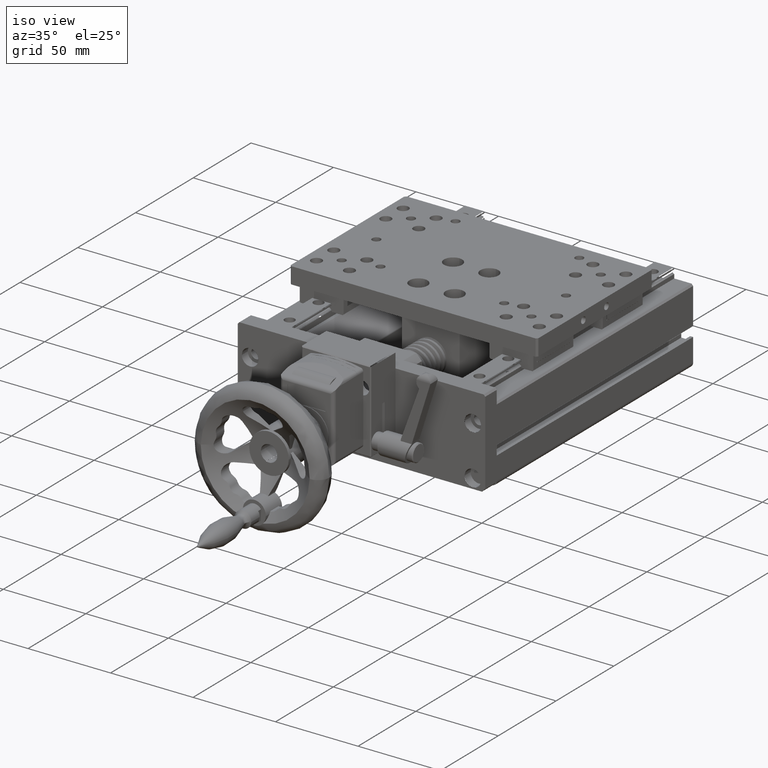
[diagram: clean part render]
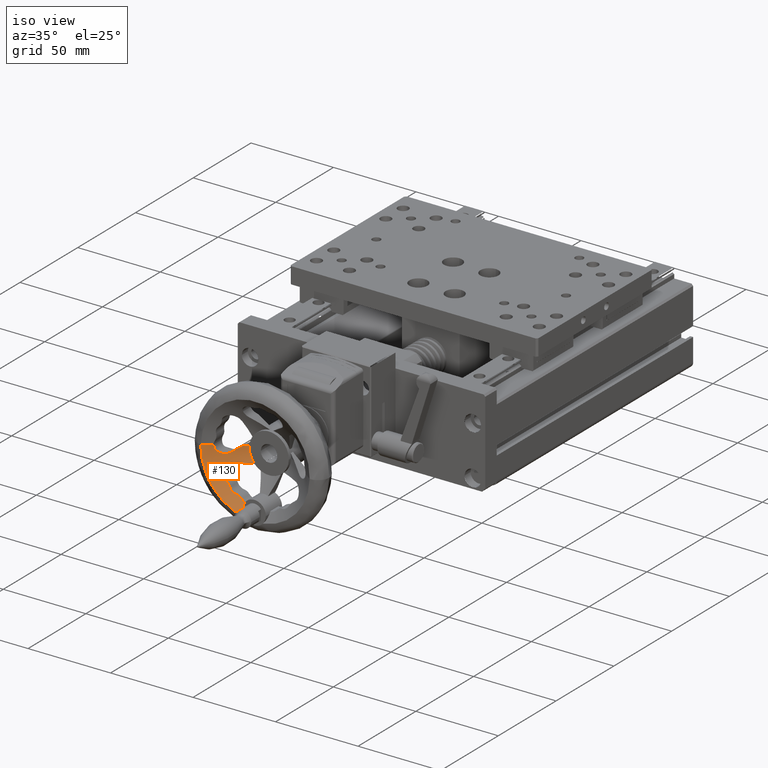
[diagram: same view with one face highlighted and labeled with its STEP entity id]
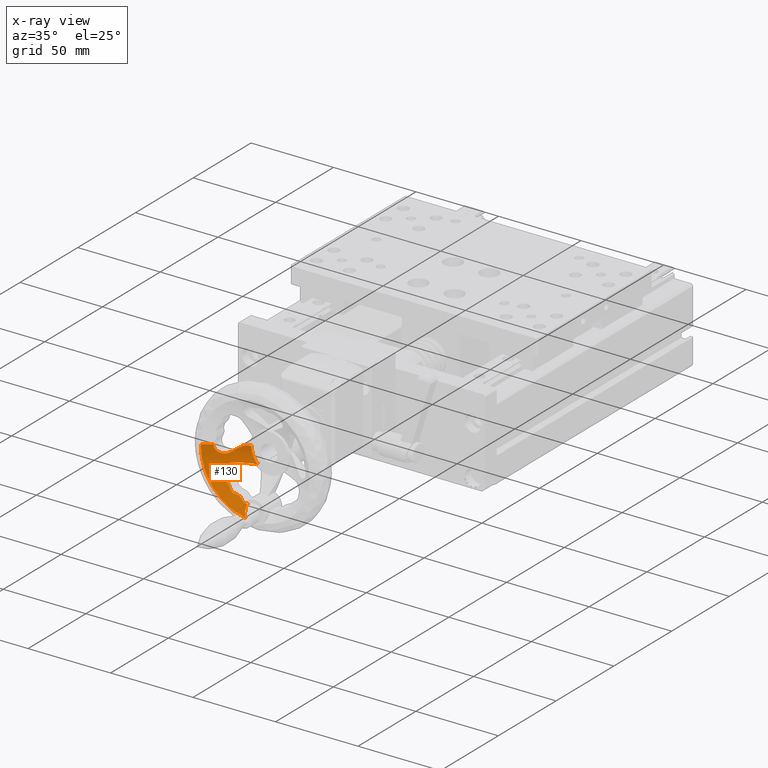
[diagram: x-ray of the same camera — body ghosted, the highlighted face saturated]
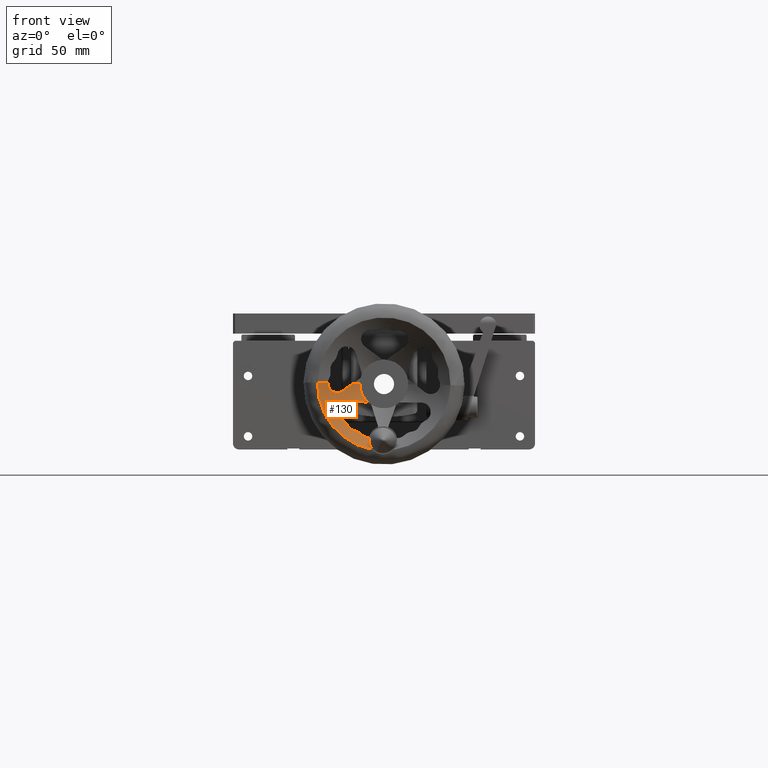
[diagram: same view with one face highlighted and labeled with its STEP entity id]
A machine part, iso view. The second image highlights one B-rep face of the part: STEP entity #130.
The next image is the same camera in x-ray: the body ghosted, the highlighted face saturated — about 0% of this face is hidden behind the body in this view.
A second angle (front view) of the same face is appended — the face is thin or edge-on in the first view.
In plain terms, the highlighted toroidal blend (fillet) surface has major radius 88.219 mm and minor (blend) radius 200 mm.
Its self-contained STEP definition (entity closure, byte-faithful):
#130 = ADVANCED_FACE ( 'NONE', ( #20526 ), #17076, .F. ) ;
#167 = CARTESIAN_POINT ( 'NONE',  ( -35.20759888211289734, -181.0721756320948828, -17.09248556605515290 ) ) ;
#332 = B_SPLINE_CURVE_WITH_KNOTS ( 'NONE', 3,
 ( #23580, #11205, #8423, #26373 ),
 .UNSPECIFIED., .F., .F.,
 ( 4, 4 ),
 ( 1.915750570996372162E-16, 0.001560065092888875647 ),
 .UNSPECIFIED. ) ;
#552 = CARTESIAN_POINT ( 'NONE',  ( -45.65972365696307378, -181.1356288327109212, -11.68217338956072915 ) ) ;
#746 = AXIS2_PLACEMENT_3D ( 'NONE', #1751, #29579, #6883 ) ;
#1002 = CARTESIAN_POINT ( 'NONE',  ( -60.82072043534120098, -185.0472645979106687, 10.11649312924499000 ) ) ;
#1063 = CARTESIAN_POINT ( 'NONE',  ( -46.36032933964354186, -180.7828937723093645, -10.39720411353399498 ) ) ;
#1073 = CARTESIAN_POINT ( 'NONE',  ( -51.51633719936766198, -180.7319738071517747, -3.696356152794018524 ) ) ;
#1103 = VERTEX_POINT ( 'NONE', #9885 ) ;
#1676 = CARTESIAN_POINT ( 'NONE',  ( -34.84302518853201747, -183.8655111626025587, -21.14174073832096212 ) ) ;
#1706 = CARTESIAN_POINT ( 'NONE',  ( -51.21001404398612067, -180.0160731779836851, -2.088564710025329507 ) ) ;
#1751 = CARTESIAN_POINT ( 'NONE',  ( 60.37710383822418692, -344.1257330768481211, 7.851927442017011316 ) ) ;
#1880 = CARTESIAN_POINT ( 'NONE',  ( -55.69161570500546787, -181.2658271515406057, 10.02065647006300964 ) ) ;
#2089 = CARTESIAN_POINT ( 'NONE',  ( -35.20759888211289734, -181.0721756320948828, -17.09248556605515290 ) ) ;
#2239 = DIRECTION ( 'NONE',  ( -0.9998254834963282711, 4.625929269271484533E-15, 0.01868160997701853732 ) ) ;
#2369 = CARTESIAN_POINT ( 'NONE',  ( -49.76837488946310373, -177.4472840918411691, 5.417039781009493460 ) ) ;
#2424 = ORIENTED_EDGE ( 'NONE', *, *, #8896, .F. ) ;
#2460 = VERTEX_POINT ( 'NONE', #10472 ) ;
#2534 = CARTESIAN_POINT ( 'NONE',  ( -48.30759186897606128, -176.4222165838544925, 6.133604127649560311 ) ) ;
#2790 = CARTESIAN_POINT ( 'NONE',  ( -43.19394182549641670, -173.0430236753305735, 9.787139048381959583 ) ) ;
#3023 = CARTESIAN_POINT ( 'NONE',  ( -53.67299588219692197, -179.9982932414938261, 6.082589096224468861 ) ) ;
#3221 = CARTESIAN_POINT ( 'NONE',  ( -49.41165364675590155, -181.0758200170191401, -7.709538353886959072 ) ) ;
#3341 = CARTESIAN_POINT ( 'NONE',  ( -45.85746851957555492, -181.0588080310190549, -11.37115806899237747 ) ) ;
#3456 = DIRECTION ( 'NONE',  ( -0.01868160997701847140, -3.885780586188043947E-16, -0.9998254834963282711 ) ) ;
#3539 = CARTESIAN_POINT ( 'NONE',  ( -50.99297939292282678, -181.2456744175864003, -5.944144708486989614 ) ) ;
#3568 = VERTEX_POINT ( 'NONE', #20243 ) ;
#3701 = CARTESIAN_POINT ( 'NONE',  ( -50.65177008716059959, -181.2687370017263220, -6.500584958977401406 ) ) ;
#3868 = CARTESIAN_POINT ( 'NONE',  ( -50.78531713316135665, -179.5002136143922371, -1.255296063082409930 ) ) ;
#3913 = ORIENTED_EDGE ( 'NONE', *, *, #29702, .F. ) ;
#4211 = CARTESIAN_POINT ( 'NONE',  ( -50.42399889044295236, -179.1336422960816890, -0.7657145961287527003 ) ) ;
#4292 = EDGE_CURVE ( 'NONE', #28869, #15861, #332, .T. ) ;
#4646 = VERTEX_POINT ( 'NONE', #2790 ) ;
#4879 = CARTESIAN_POINT ( 'NONE',  ( -52.15783460873674926, -179.0353327453101713, 5.385566004492386760 ) ) ;
#5051 = CARTESIAN_POINT ( 'NONE',  ( -55.56572806013129906, -181.1778190091564227, 8.827365797378989853 ) ) ;
#5216 = CARTESIAN_POINT ( 'NONE',  ( -55.03235136653582060, -180.8443078185648289, 7.528983904851460629 ) ) ;
#5234 = VERTEX_POINT ( 'NONE', #6736 ) ;
#5402 = CARTESIAN_POINT ( 'NONE',  ( -39.56754377109692911, -172.6226366815955657, 0.6742198163762701535 ) ) ;
#5416 = CIRCLE ( 'NONE', #20623, 33.00000000000002132 ) ;
#5484 = CARTESIAN_POINT ( 'NONE',  ( -46.70979708014515808, -176.4222165838594663, 0.8843803315465963433 ) ) ;
#5522 = CARTESIAN_POINT ( 'NONE',  ( -52.55725751959531067, -179.2919521824121318, 5.503309268526999531 ) ) ;
#5569 = CARTESIAN_POINT ( 'NONE',  ( -35.83619223977510870, -171.0472645979106971, 0.5644249482622022418 ) ) ;
#5588 = DIRECTION ( 'NONE',  ( -0.9998254834963282711, 4.323581423437693004E-15, 0.01868160997701846793 ) ) ;
#5715 = CARTESIAN_POINT ( 'NONE',  ( -51.47773221436244029, -180.9978569296023636, -4.523629121668261810 ) ) ;
#5738 = CARTESIAN_POINT ( 'NONE',  ( -46.63266729088378781, -175.2221292571945526, 7.330282700415003738 ) ) ;
#5870 = CARTESIAN_POINT ( 'NONE',  ( -50.23385097093370888, -181.2372387930633124, -7.006299938386707282 ) ) ;
#6012 = CARTESIAN_POINT ( 'NONE',  ( -46.17362950097570007, -180.8604277609198334, -10.71745405740912815 ) ) ;
#6161 = CARTESIAN_POINT ( 'NONE',  ( -44.92063567721042716, -181.2659377547785482, -12.51528975698866475 ) ) ;
#6230 = EDGE_CURVE ( 'NONE', #2460, #21063, #9698, .T. ) ;
#6365 = CARTESIAN_POINT ( 'NONE',  ( -51.51633719936766198, -180.7319738071517747, -3.696356152794018524 ) ) ;
#6736 = CARTESIAN_POINT ( 'NONE',  ( -55.69161570500546787, -181.2658271515406057, 10.02065647006300964 ) ) ;
#6843 = CARTESIAN_POINT ( 'NONE',  ( -49.53595329109386114, -178.3576305509217832, 0.04616065768476903391 ) ) ;
#6883 = DIRECTION ( 'NONE',  ( -0.9998254834963282711, 0.000000000000000000, 0.01868160997701847140 ) ) ;
#6963 = CARTESIAN_POINT ( 'NONE',  ( -34.26332441635123871, -184.5980068641159733, -22.26438063636139120 ) ) ;
#7087 = CARTESIAN_POINT ( 'NONE',  ( -38.77664997416599135, -180.9596663953806797, -15.65965585937461135 ) ) ;
#7256 = CARTESIAN_POINT ( 'NONE',  ( -41.38557953275041967, -180.7063936898569807, -13.94296107636202642 ) ) ;
#7277 = CARTESIAN_POINT ( 'NONE',  ( -36.84275012984822695, -181.2670105658246484, -16.87354792188359909 ) ) ;
#7336 = CARTESIAN_POINT ( 'NONE',  ( -54.34039896910782375, -180.4150160428827974, 6.639535763759090159 ) ) ;
#7376 = CARTESIAN_POINT ( 'NONE',  ( -46.70979708014515808, -176.4222165838594663, 0.8843803315465963433 ) ) ;
#7487 = CARTESIAN_POINT ( 'NONE',  ( -54.77942292163696436, -180.6874964110879489, 7.150293849236059707 ) ) ;
#7826 = CARTESIAN_POINT ( 'NONE',  ( -53.31114226078447871, -179.7705454754542700, 5.857123049797614556 ) ) ;
#7989 = CARTESIAN_POINT ( 'NONE',  ( -33.73517687360812545, -185.0472645979110382, -22.96671056805886124 ) ) ;
#7999 = CARTESIAN_POINT ( 'NONE',  ( -48.40763726117756960, -180.7841996532058886, -8.274061908304238599 ) ) ;
#8423 = CARTESIAN_POINT ( 'NONE',  ( -35.34038421728889290, -181.6789010524686887, -17.93839731013261485 ) ) ;
#8476 = CARTESIAN_POINT ( 'NONE',  ( -51.25197336798499492, -181.1696398957047336, -5.349882254967512907 ) ) ;
#8600 = CARTESIAN_POINT ( 'NONE',  ( -44.47648753274064859, -181.2657713218470974, -12.85048475339181451 ) ) ;
#8674 = AXIS2_PLACEMENT_3D ( 'NONE', #30377, #17535, #2239 ) ;
#8896 = EDGE_CURVE ( 'NONE', #27811, #4646, #10948, .T. ) ;
#9271 = CARTESIAN_POINT ( 'NONE',  ( -49.03030695708595488, -177.9629793446584642, 0.3553073157518634173 ) ) ;
#9310 = ORIENTED_EDGE ( 'NONE', *, *, #29385, .F. ) ;
#9429 = EDGE_CURVE ( 'NONE', #13628, #28869, #27701, .T. ) ;
#9698 = CIRCLE ( 'NONE', #8674, 12.00000000000000355 ) ;
#9885 = CARTESIAN_POINT ( 'NONE',  ( -42.61839203092201700, -180.9596664132261594, -13.61090315448903709 ) ) ;
#9944 = CARTESIAN_POINT ( 'NONE',  ( -48.64875041667082911, -176.6666574708258963, 5.889857555844051795 ) ) ;
#10031 = CARTESIAN_POINT ( 'NONE',  ( -39.89443863455388595, -180.6793691793801884, -14.70357034504473503 ) ) ;
#10051 = CARTESIAN_POINT ( 'NONE',  ( -36.99978170966205226, -181.2672600317621630, -16.81970660152948938 ) ) ;
#10100 = CARTESIAN_POINT ( 'NONE',  ( -54.63891806896142356, -180.6004125194051255, 6.970380765414200930 ) ) ;
#10198 = CIRCLE ( 'NONE', #746, 200.0000000000050022 ) ;
#10323 = CARTESIAN_POINT ( 'NONE',  ( -48.30759186897606128, -176.4222165838544925, 6.133604127649560311 ) ) ;
#10472 = CARTESIAN_POINT ( 'NONE',  ( -39.82438528191870120, -171.0472645979106971, 9.724179319727600301 ) ) ;
#10478 = ORIENTED_EDGE ( 'NONE', *, *, #18404, .F. ) ;
#10902 = CARTESIAN_POINT ( 'NONE',  ( -43.83276217124959118, -181.2128299124469777, -13.22506020062132315 ) ) ;
#10905 = B_SPLINE_CURVE_WITH_KNOTS ( 'NONE', 3,
 ( #5569, #12772, #27957, #5402, #15406, #30541, #15565, #7376 ),
 .UNSPECIFIED., .F., .F.,
 ( 4, 2, 2, 4 ),
 ( 1.059522947639563442E-16, 0.003033436196410254845, 0.006066872392820403873, 0.01213374478564074009 ),
 .UNSPECIFIED. ) ;
#10948 = B_SPLINE_CURVE_WITH_KNOTS ( 'NONE', 3,
 ( #10323, #5738, #15745, #20849 ),
 .UNSPECIFIED., .F., .F.,
 ( 4, 4 ),
 ( 2.550235266125676276E-16, 0.007131365107310205613 ),
 .UNSPECIFIED. ) ;
#10949 = ORIENTED_EDGE ( 'NONE', *, *, #4292, .F. ) ;
#11205 = CARTESIAN_POINT ( 'NONE',  ( -35.29388226409313489, -181.3773086519043716, -17.51436107901160355 ) ) ;
#11261 = ORIENTED_EDGE ( 'NONE', *, *, #31879, .F. ) ;
#11265 = CARTESIAN_POINT ( 'NONE',  ( -51.52407215377625960, -180.8789452557913648, -4.110324999210925867 ) ) ;
#11587 = CARTESIAN_POINT ( 'NONE',  ( -47.92151523215729725, -177.1679762397873503, 0.8001652779037958796 ) ) ;
#11740 = CARTESIAN_POINT ( 'NONE',  ( -51.31789050069276215, -180.1790703582512947, -2.395535511290179720 ) ) ;
#11910 = CARTESIAN_POINT ( 'NONE',  ( -46.70979708014515808, -176.4222165838594663, 0.8843803315465963433 ) ) ;
#11980 = ORIENTED_EDGE ( 'NONE', *, *, #27535, .F. ) ;
#12087 = CARTESIAN_POINT ( 'NONE',  ( -51.46691180254790510, -180.4754045009820231, -3.027263917532670323 ) ) ;
#12353 = CARTESIAN_POINT ( 'NONE',  ( -36.35756103594783895, -181.2449344776378553, -17.00192047523051997 ) ) ;
#12730 = CARTESIAN_POINT ( 'NONE',  ( -50.15697648601491210, -177.7123344844704320, 5.326652898786684354 ) ) ;
#12772 = CARTESIAN_POINT ( 'NONE',  ( -36.78785045658981545, -171.4030008482865526, 0.5924274528581241483 ) ) ;
#12797 = ORIENTED_EDGE ( 'NONE', *, *, #31979, .F. ) ;
#12808 = ORIENTED_EDGE ( 'NONE', *, *, #6230, .F. ) ;
#12821 = CARTESIAN_POINT ( 'NONE',  ( -42.61839203092201700, -180.9596664132261594, -13.61090315448903709 ) ) ;
#13380 = CARTESIAN_POINT ( 'NONE',  ( -46.01547161908842298, -180.9596664563090087, -11.04446607956113091 ) ) ;
#13628 = VERTEX_POINT ( 'NONE', #27149 ) ;
#13706 = CARTESIAN_POINT ( 'NONE',  ( -44.32215288086067773, -181.2591845239853114, -12.95316525716067702 ) ) ;
#13924 = B_SPLINE_CURVE_WITH_KNOTS ( 'NONE', 3,
 ( #11910, #14559, #11587, #21643, #9271, #6843, #26772, #26933, #4211, #3868, #14228, #1706, #11740, #12087, #28908, #6365 ),
 .UNSPECIFIED., .F., .F.,
 ( 4, 2, 2, 2, 2, 2, 2, 4 ),
 ( 7.059813062317230268E-18, 0.002127052117968512065, 0.003190578176952756605, 0.004254104235937001578, 0.005317630294921246552, 0.006381156353905490658, 0.007444682412889736499, 0.008508208471873980605 ),
 .UNSPECIFIED. ) ;
#13984 = CARTESIAN_POINT ( 'NONE',  ( -35.83619223977510870, -171.0472645979106971, 0.5644249482622022418 ) ) ;
#14228 = CARTESIAN_POINT ( 'NONE',  ( -50.94350668754265854, -179.6767729986901259, -1.519182006201003743 ) ) ;
#14248 = B_SPLINE_CURVE_WITH_KNOTS ( 'NONE', 3,
 ( #12821, #22568, #15303, #7256, #27847, #32420, #29792, #32589, #10031, #17284, #20384, #7087 ),
 .UNSPECIFIED., .F., .F.,
 ( 4, 2, 2, 2, 2, 4 ),
 ( -1.459707502440843463E-10, 0.001114276024799435490, 0.001671414110184522286, 0.002228552195569609082, 0.003342828366339798719, 0.004457104537109988357 ),
 .UNSPECIFIED. ) ;
#14326 = B_SPLINE_CURVE_WITH_KNOTS ( 'NONE', 3,
 ( #1073, #11265, #5715, #23155, #8476, #18502, #3539, #28266, #3701, #25617, #5870, #16044, #3221, #21153 ),
 .UNSPECIFIED., .F., .F.,
 ( 4, 2, 2, 2, 2, 2, 4 ),
 ( 0.008508208471873980605, 0.009801992360969858861, 0.01044888430551779365, 0.01109577625006572844, 0.01174266819461366324, 0.01238956013916159803, 0.01368334402825745547 ),
 .UNSPECIFIED. ) ;
#14526 = CARTESIAN_POINT ( 'NONE',  ( -35.32968746329526510, -182.5306567619357452, -19.15969302617585512 ) ) ;
#14559 = CARTESIAN_POINT ( 'NONE',  ( -47.33314208570687498, -176.7857789498120269, 0.9027222331607641648 ) ) ;
#14697 = CARTESIAN_POINT ( 'NONE',  ( -35.35575796804413784, -182.2553671376244893, -18.76118869700332326 ) ) ;
#15303 = CARTESIAN_POINT ( 'NONE',  ( -41.90783671674612521, -180.7841996930243340, -13.76406485906520238 ) ) ;
#15320 = CARTESIAN_POINT ( 'NONE',  ( -37.46124627196565626, -181.2523338800691874, -16.63356430774629757 ) ) ;
#15406 = CARTESIAN_POINT ( 'NONE',  ( -40.47868785492314458, -173.0604045670599191, 0.7010301942452172863 ) ) ;
#15565 = CARTESIAN_POINT ( 'NONE',  ( -44.95932736618166814, -175.4012652566526356, 0.8328728309080352110 ) ) ;
#15745 = CARTESIAN_POINT ( 'NONE',  ( -44.93358878525398836, -174.0821219043837971, 8.544218460704174234 ) ) ;
#15861 = VERTEX_POINT ( 'NONE', #31559 ) ;
#15868 = EDGE_CURVE ( 'NONE', #4646, #2460, #10198, .T. ) ;
#16044 = CARTESIAN_POINT ( 'NONE',  ( -49.76608600900976143, -181.1618116859144720, -7.454462687134737031 ) ) ;
#16122 = EDGE_CURVE ( 'NONE', #28816, #3568, #14326, .T. ) ;
#16179 = CARTESIAN_POINT ( 'NONE',  ( -45.19406513332943121, -181.2390054235078480, -12.25176645954681653 ) ) ;
#16250 = EDGE_CURVE ( 'NONE', #25420, #28816, #13924, .T. ) ;
#16519 = DIRECTION ( 'NONE',  ( -0.9998254834963283821, 4.205390244792256874E-15, 0.01868160997701846446 ) ) ;
#16687 = CARTESIAN_POINT ( 'NONE',  ( -27.82647947996281701, -185.0472645979107540, 9.500000000003389289 ) ) ;
#16845 = CARTESIAN_POINT ( 'NONE',  ( -35.10861198646918524, -183.3468515173473747, -20.36191410536614654 ) ) ;
#17076 = TOROIDAL_SURFACE ( 'NONE', #20738, -88.21897898595780418, 200.0000000000050022 ) ;
#17164 = CARTESIAN_POINT ( 'NONE',  ( -34.67519629812017712, -184.1158195029247224, -21.52270552019717798 ) ) ;
#17284 = CARTESIAN_POINT ( 'NONE',  ( -39.30464412219473047, -180.7828937304022929, -15.15064006020344678 ) ) ;
#17305 = CARTESIAN_POINT ( 'NONE',  ( -38.77664997416599135, -180.9596663953806797, -15.65965585937461135 ) ) ;
#17359 = CARTESIAN_POINT ( 'NONE',  ( -55.68186471442707841, -181.2546932375316260, 9.537595055809410027 ) ) ;
#17535 = DIRECTION ( 'NONE',  ( -4.315567623387590858E-15, -1.000000000000000000, 4.692817071911560187E-16 ) ) ;
#17561 = EDGE_CURVE ( 'NONE', #1103, #26979, #24233, .T. ) ;
#17906 = VERTEX_POINT ( 'NONE', #1002 ) ;
#17939 = CARTESIAN_POINT ( 'NONE',  ( -38.30389302790381123, -181.1184598408520401, -16.10408785455879865 ) ) ;
#18014 = CARTESIAN_POINT ( 'NONE',  ( -47.01786629164967479, -180.6531243627433980, -9.503491162597793362 ) ) ;
#18404 = EDGE_CURVE ( 'NONE', #3568, #26979, #27991, .T. ) ;
#18490 = CARTESIAN_POINT ( 'NONE',  ( -49.03608593310845976, -180.9596663953803102, -7.908822789522964136 ) ) ;
#18502 = CARTESIAN_POINT ( 'NONE',  ( -51.08832244978440684, -181.2262132428908217, -5.750364845045411677 ) ) ;
#18660 = CARTESIAN_POINT ( 'NONE',  ( -47.54204103602294396, -180.6599187436422937, -8.970385570222408234 ) ) ;
#19312 = DIRECTION ( 'NONE',  ( 4.315567623387590858E-15, 1.000000000000000000, -4.692817071911560187E-16 ) ) ;
#19499 = CARTESIAN_POINT ( 'NONE',  ( -55.69609805092399313, -181.2658271515406341, 9.780764743349681822 ) ) ;
#19821 = CIRCLE ( 'NONE', #27207, 200.0000000000050022 ) ;
#20243 = CARTESIAN_POINT ( 'NONE',  ( -49.03608593310845976, -180.9596663953803102, -7.908822789522964136 ) ) ;
#20384 = CARTESIAN_POINT ( 'NONE',  ( -39.02811933968717284, -180.8604277091432664, -15.39752242528868820 ) ) ;
#20526 = FACE_OUTER_BOUND ( 'NONE', #31690, .T. ) ;
#20619 = CARTESIAN_POINT ( 'NONE',  ( -42.61839203092201700, -180.9596664132261594, -13.61090315448903709 ) ) ;
#20623 = AXIS2_PLACEMENT_3D ( 'NONE', #16687, #19312, #16519 ) ;
#20679 = DIRECTION ( 'NONE',  ( 4.315567623387590858E-15, 1.000000000000000000, -4.692817071911560187E-16 ) ) ;
#20738 = AXIS2_PLACEMENT_3D ( 'NONE', #31039, #20679, #5588 ) ;
#20849 = CARTESIAN_POINT ( 'NONE',  ( -43.19394182549641670, -173.0430236753305735, 9.787139048381959583 ) ) ;
#20979 = CARTESIAN_POINT ( 'NONE',  ( -47.40586362713558088, -180.6532000477924953, -9.100841302147944845 ) ) ;
#21063 = VERTEX_POINT ( 'NONE', #13984 ) ;
#21153 = CARTESIAN_POINT ( 'NONE',  ( -49.03608593310845976, -180.9596663953803102, -7.908822789522964136 ) ) ;
#21643 = CARTESIAN_POINT ( 'NONE',  ( -48.76026111472408786, -177.7623404869495118, 0.4869952533016387863 ) ) ;
#22428 = CARTESIAN_POINT ( 'NONE',  ( -35.53623488985407874, -181.1442016417950356, -17.10650398911158732 ) ) ;
#22568 = CARTESIAN_POINT ( 'NONE',  ( -42.26078131278589467, -180.8604761307455533, -13.67364686858400269 ) ) ;
#22649 = B_SPLINE_CURVE_WITH_KNOTS ( 'NONE', 3,
 ( #1880, #19499, #17359, #32504, #5051, #30027, #29870, #22959, #5216, #7487, #10100, #7336, #25588, #25112, #3023, #7826, #28075, #5522, #4879, #30506, #27433, #12730, #2369, #27588, #9944, #2534 ),
 .UNSPECIFIED., .F., .F.,
 ( 4, 2, 2, 2, 2, 2, 2, 2, 2, 2, 2, 2, 4 ),
 ( 0.002229148216206087128, 0.002949271159768102665, 0.003669394103330118201, 0.004389517046892133303, 0.005109639990454151875, 0.005829762934016169580, 0.006549885877578188152, 0.007270008821140205857, 0.007990131764702222694, 0.009430377651826200858, 0.01087062353895017902, 0.01231086942607416065, 0.01375111531319813882 ),
 .UNSPECIFIED. ) ;
#22959 = CARTESIAN_POINT ( 'NONE',  ( -55.14592247338758568, -180.9147475390381885, 7.728825107788918736 ) ) ;
#23046 = B_SPLINE_CURVE_WITH_KNOTS ( 'NONE', 3,
 ( #24252, #14697, #14526, #31955, #16845, #1676, #17164, #6963, #29188, #26900 ),
 .UNSPECIFIED., .F., .F.,
 ( 4, 2, 2, 2, 4 ),
 ( 0.001560065092888875647, 0.003013553975729150233, 0.004467042858569424818, 0.005920531741409699837, 0.007374020624249973989 ),
 .UNSPECIFIED. ) ;
#23155 = CARTESIAN_POINT ( 'NONE',  ( -51.32025766067960149, -181.1321408112997347, -5.142084215380006817 ) ) ;
#23290 = CARTESIAN_POINT ( 'NONE',  ( -48.71536694236669973, -180.8604761151140679, -8.079003326973788646 ) ) ;
#23580 = CARTESIAN_POINT ( 'NONE',  ( -35.20759888211289734, -181.0721756320948828, -17.09248556605515290 ) ) ;
#24233 = B_SPLINE_CURVE_WITH_KNOTS ( 'NONE', 3,
 ( #20619, #28549, #25901, #10902, #28236, #13706, #8600, #6161, #16179, #552, #3341, #13380 ),
 .UNSPECIFIED., .F., .F.,
 ( 4, 2, 2, 2, 2, 4 ),
 ( 0.000000000000000000, 0.001113396427629999123, 0.001670094641445004757, 0.002226792855260010390, 0.003340189282890038136, 0.004453585710520065882 ),
 .UNSPECIFIED. ) ;
#24252 = CARTESIAN_POINT ( 'NONE',  ( -35.34834294379361097, -181.9773276358081375, -18.36434226805426562 ) ) ;
#24480 = ORIENTED_EDGE ( 'NONE', *, *, #24891, .F. ) ;
#24722 = CARTESIAN_POINT ( 'NONE',  ( -37.75968789606202591, -181.2207074297602105, -16.47397828103190065 ) ) ;
#24776 = VERTEX_POINT ( 'NONE', #7989 ) ;
#24891 = EDGE_CURVE ( 'NONE', #24776, #17906, #5416, .T. ) ;
#25112 = CARTESIAN_POINT ( 'NONE',  ( -53.84898768491478194, -180.1085376659954136, 6.209630245263973336 ) ) ;
#25368 = CARTESIAN_POINT ( 'NONE',  ( -35.86482255752062542, -181.1965729358655892, -17.08612887015357273 ) ) ;
#25420 = VERTEX_POINT ( 'NONE', #5484 ) ;
#25588 = CARTESIAN_POINT ( 'NONE',  ( -54.18211354197323004, -180.3165367136041368, 6.487779977585171665 ) ) ;
#25617 = CARTESIAN_POINT ( 'NONE',  ( -50.38000757455586154, -181.2537571828851810, -6.845634771017538256 ) ) ;
#25901 = CARTESIAN_POINT ( 'NONE',  ( -43.32422210993304645, -181.1347387503870721, -13.44473253086528608 ) ) ;
#25919 = CARTESIAN_POINT ( 'NONE',  ( -47.96622314108884666, -180.7063936641760336, -8.605588683137503025 ) ) ;
#26018 = CARTESIAN_POINT ( 'NONE',  ( 60.37710383822418692, -344.1257330768481211, 7.851927442017011316 ) ) ;
#26096 = CARTESIAN_POINT ( 'NONE',  ( -46.01547161908842298, -180.9596664563090087, -11.04446607956113091 ) ) ;
#26373 = CARTESIAN_POINT ( 'NONE',  ( -35.34834294379361097, -181.9773276358081375, -18.36434226805426562 ) ) ;
#26772 = CARTESIAN_POINT ( 'NONE',  ( -49.77397111522044781, -178.5533323283515017, -0.1321190701752054386 ) ) ;
#26900 = CARTESIAN_POINT ( 'NONE',  ( -33.73517687360812545, -185.0472645979110382, -22.96671056805886124 ) ) ;
#26933 = CARTESIAN_POINT ( 'NONE',  ( -50.21868519501720129, -178.9417993944406930, -0.5382422989985550243 ) ) ;
#26979 = VERTEX_POINT ( 'NONE', #32064 ) ;
#26980 = CARTESIAN_POINT ( 'NONE',  ( -51.51633719936766198, -180.7319738071517747, -3.696356152794018524 ) ) ;
#27149 = CARTESIAN_POINT ( 'NONE',  ( -38.77664997416599135, -180.9596663953806797, -15.65965585937461135 ) ) ;
#27207 = AXIS2_PLACEMENT_3D ( 'NONE', #26018, #3456, #28656 ) ;
#27433 = CARTESIAN_POINT ( 'NONE',  ( -50.95884059929930743, -178.2504745929268211, 5.246494410489940918 ) ) ;
#27535 = EDGE_CURVE ( 'NONE', #21063, #25420, #10905, .T. ) ;
#27588 = CARTESIAN_POINT ( 'NONE',  ( -49.01547929330424580, -176.9253585682203891, 5.697562520827115229 ) ) ;
#27701 = B_SPLINE_CURVE_WITH_KNOTS ( 'NONE', 3,
 ( #17305, #29977, #17939, #24722, #15320, #10051, #7277, #29811, #12353, #25368, #22428, #167 ),
 .UNSPECIFIED., .F., .F.,
 ( 4, 2, 2, 2, 2, 4 ),
 ( 0.000000000000000000, 0.0009963740689577828009, 0.001992748137915565602, 0.002490935172394457327, 0.002989122206873348186, 0.003985496275831121663 ),
 .UNSPECIFIED. ) ;
#27811 = VERTEX_POINT ( 'NONE', #30191 ) ;
#27847 = CARTESIAN_POINT ( 'NONE',  ( -41.21269319385589824, -180.6865836008586257, -14.00983734624793975 ) ) ;
#27957 = CARTESIAN_POINT ( 'NONE',  ( -37.72206288329044099, -171.7940607396465111, 0.6199166157845082958 ) ) ;
#27991 = B_SPLINE_CURVE_WITH_KNOTS ( 'NONE', 3,
 ( #18490, #23290, #7999, #25919, #28571, #18660, #20979, #18014, #28736, #1063, #6012, #26096 ),
 .UNSPECIFIED., .F., .F.,
 ( 4, 2, 2, 2, 2, 4 ),
 ( 2.409954872719146512E-17, 0.001114276174737476423, 0.001671414262106194360, 0.002228552349474912514, 0.003342828524212337546, 0.004457104698949763445 ),
 .UNSPECIFIED. ) ;
#28075 = CARTESIAN_POINT ( 'NONE',  ( -53.12572772889378570, -179.6533298973843955, 5.758704321350747612 ) ) ;
#28236 = CARTESIAN_POINT ( 'NONE',  ( -44.00082292289717145, -181.2328291351409177, -13.14029339767934523 ) ) ;
#28266 = CARTESIAN_POINT ( 'NONE',  ( -50.77513306368384605, -181.2669616037200626, -6.318713871876457944 ) ) ;
#28549 = CARTESIAN_POINT ( 'NONE',  ( -42.97574196198933549, -181.0587844106615023, -13.54820520444991239 ) ) ;
#28571 = CARTESIAN_POINT ( 'NONE',  ( -47.82246436816836166, -180.6865835800580271, -8.722616617733546462 ) ) ;
#28656 = DIRECTION ( 'NONE',  ( -0.9998254834963282711, 0.000000000000000000, 0.01868160997701847140 ) ) ;
#28736 = CARTESIAN_POINT ( 'NONE',  ( -46.78310509616748902, -180.6793692002984244, -9.789759004594875691 ) ) ;
#28816 = VERTEX_POINT ( 'NONE', #26980 ) ;
#28869 = VERTEX_POINT ( 'NONE', #2089 ) ;
#28908 = CARTESIAN_POINT ( 'NONE',  ( -51.50997885339666027, -180.6111592206723913, -3.356062337511086291 ) ) ;
#29188 = CARTESIAN_POINT ( 'NONE',  ( -34.01787525159822678, -184.8305775765365411, -22.62622732337864306 ) ) ;
#29385 = EDGE_CURVE ( 'NONE', #5234, #27811, #22649, .T. ) ;
#29579 = DIRECTION ( 'NONE',  ( -0.01868160997701847140, -3.885780586188043947E-16, -0.9998254834963282711 ) ) ;
#29702 = EDGE_CURVE ( 'NONE', #15861, #24776, #23046, .T. ) ;
#29792 = CARTESIAN_POINT ( 'NONE',  ( -40.69960448492440719, -180.6532000530753805, -14.24081367058861858 ) ) ;
#29811 = CARTESIAN_POINT ( 'NONE',  ( -36.52217810801844422, -181.2559166744615595, -16.96459151810592303 ) ) ;
#29870 = CARTESIAN_POINT ( 'NONE',  ( -55.34521901393873833, -181.0388268686638185, 8.151028734985144908 ) ) ;
#29977 = CARTESIAN_POINT ( 'NONE',  ( -38.55188475276320048, -181.0483667082024226, -15.89395274327968366 ) ) ;
#30027 = CARTESIAN_POINT ( 'NONE',  ( -55.43066018727333244, -181.0922988145999284, 8.373796448891063449 ) ) ;
#30191 = CARTESIAN_POINT ( 'NONE',  ( -48.30759186897606128, -176.4222165838544925, 6.133604127649560311 ) ) ;
#30340 = ORIENTED_EDGE ( 'NONE', *, *, #9429, .F. ) ;
#30375 = ORIENTED_EDGE ( 'NONE', *, *, #16250, .F. ) ;
#30377 = CARTESIAN_POINT ( 'NONE',  ( -27.82647947996275661, -171.0472645979107540, 9.500000000003382183 ) ) ;
#30504 = ORIENTED_EDGE ( 'NONE', *, *, #15868, .F. ) ;
#30506 = CARTESIAN_POINT ( 'NONE',  ( -51.36008998300490447, -178.5155015210303588, 5.258154669787331592 ) ) ;
#30541 = CARTESIAN_POINT ( 'NONE',  ( -43.18691996103031272, -174.4247326185667077, 0.7807198145922408239 ) ) ;
#30921 = ORIENTED_EDGE ( 'NONE', *, *, #17561, .T. ) ;
#31039 = CARTESIAN_POINT ( 'NONE',  ( -27.82647947996350268, -344.1257330768477232, 9.500000000003463896 ) ) ;
#31559 = CARTESIAN_POINT ( 'NONE',  ( -35.34834294379361097, -181.9773276358081375, -18.36434226805426562 ) ) ;
#31690 = EDGE_LOOP ( 'NONE', ( #11261, #24480, #3913, #10949, #30340, #12797, #30921, #10478, #32011, #30375, #11980, #12808, #30504, #2424, #9310 ) ) ;
#31879 = EDGE_CURVE ( 'NONE', #17906, #5234, #19821, .T. ) ;
#31955 = CARTESIAN_POINT ( 'NONE',  ( -35.20659275173632352, -183.0761793513250666, -19.95967696064235497 ) ) ;
#31979 = EDGE_CURVE ( 'NONE', #1103, #13628, #14248, .T. ) ;
#32011 = ORIENTED_EDGE ( 'NONE', *, *, #16122, .F. ) ;
#32064 = CARTESIAN_POINT ( 'NONE',  ( -46.01547161908842298, -180.9596664563090087, -11.04446607956113091 ) ) ;
#32420 = CARTESIAN_POINT ( 'NONE',  ( -40.86942993815504366, -180.6599187542889524, -14.15882403552090985 ) ) ;
#32504 = CARTESIAN_POINT ( 'NONE',  ( -55.61635537936810891, -181.2104870774888923, 9.059998502354769556 ) ) ;
#32589 = CARTESIAN_POINT ( 'NONE',  ( -40.20617143309635821, -180.6531243522680086, -14.50385865783421480 ) ) ;